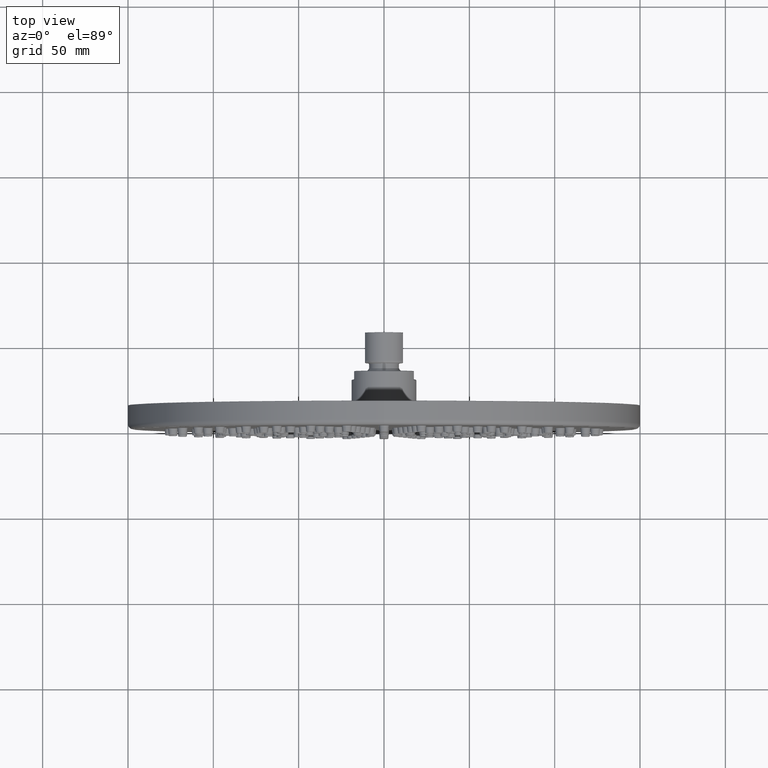
[diagram: clean part render]
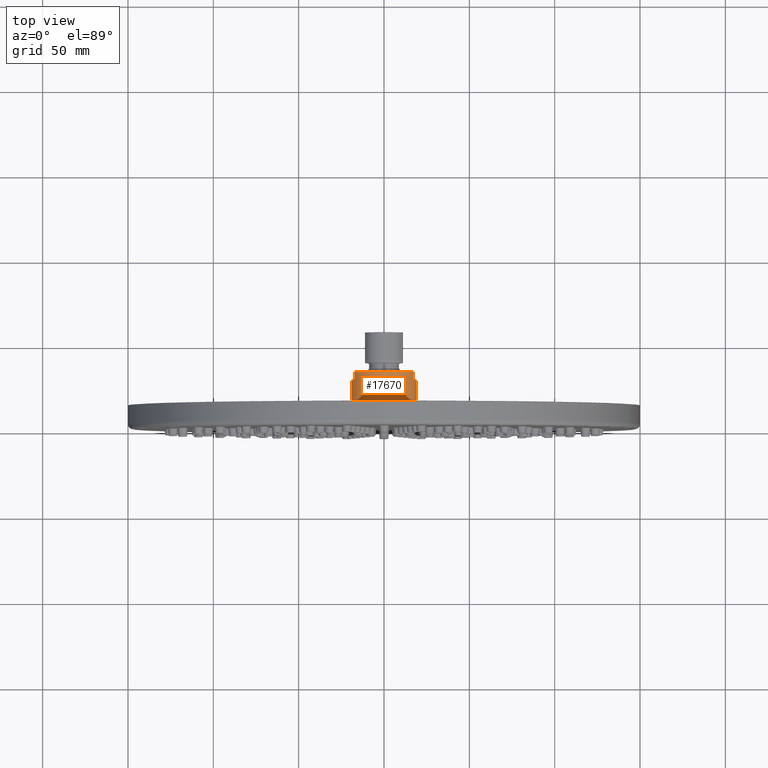
[diagram: same view with one face highlighted and labeled with its STEP entity id]
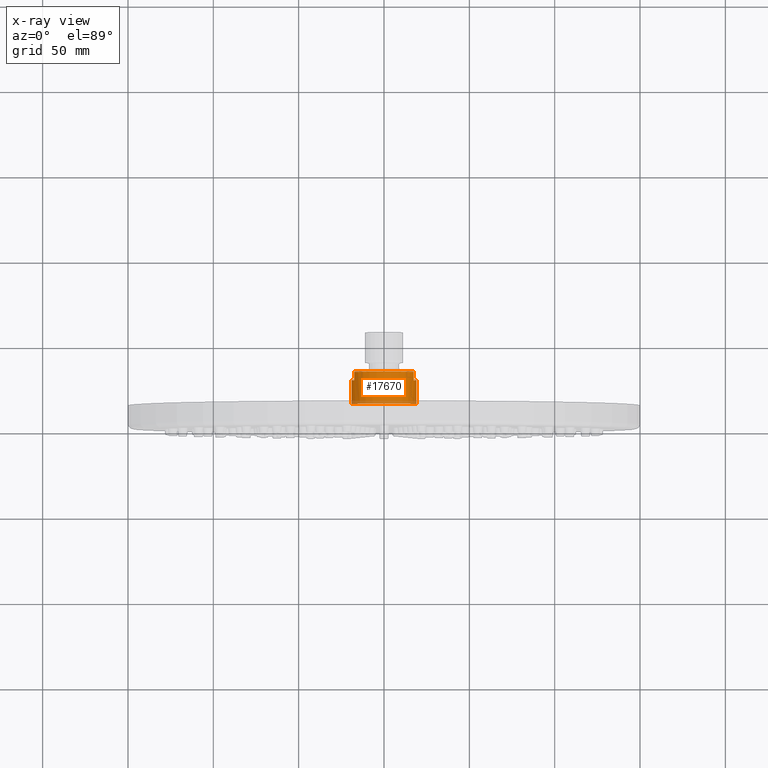
[diagram: x-ray of the same camera — body ghosted, the highlighted face saturated]
A machine part, top view. The second image highlights one B-rep face of the part: STEP entity #17670.
The next image is the same camera in x-ray: the body ghosted, the highlighted face saturated — about 10% of this face is hidden behind the body in this view.
In plain terms, the highlighted cylindrical surface (edge-blend (fillet) strip) has radius 19 mm, axis along (0, -1, 0).
Its self-contained STEP definition (entity closure, byte-faithful):
#15492=CARTESIAN_POINT('',(0.E0,-1.937987390906E1,0.E0));
#15493=DIRECTION('',(0.E0,1.E0,0.E0));
#15494=DIRECTION('',(-1.E0,0.E0,0.E0));
#15495=AXIS2_PLACEMENT_3D('',#15492,#15493,#15494);
#15512=DIRECTION('',(0.E0,-1.E0,0.E0));
#15513=VECTOR('',#15512,1.387987390906E1);
#15514=CARTESIAN_POINT('',(1.9E1,-5.5E0,0.E0));
#15515=LINE('',#15514,#15513);
#15516=DIRECTION('',(-1.347503469154E-6,9.999999999942E-1,-3.139352015306E-6));
#15517=VECTOR('',#15516,5.000000000029E0);
#15518=CARTESIAN_POINT('',(-1.745945945947E1,-5.5E0,7.494482996387E0));
#15519=LINE('',#15518,#15517);
#15520=DIRECTION('',(-7.903419643169E-7,-9.999999999980E-1,1.841266120547E-6));
#15521=VECTOR('',#15520,5.000000000010E0);
#15522=CARTESIAN_POINT('',(1.745946341117E1,-5.E-1,7.494473790071E0));
#15523=LINE('',#15522,#15521);
#15532=DIRECTION('',(0.E0,-1.E0,0.E0));
#15533=VECTOR('',#15532,1.387987390906E1);
#15534=CARTESIAN_POINT('',(-1.9E1,-5.5E0,0.E0));
#15535=LINE('',#15534,#15533);
#15546=CARTESIAN_POINT('',(0.E0,-5.5E0,0.E0));
#15547=DIRECTION('',(0.E0,-1.E0,0.E0));
#15548=DIRECTION('',(1.E0,0.E0,0.E0));
#15549=AXIS2_PLACEMENT_3D('',#15546,#15547,#15548);
#15665=CARTESIAN_POINT('',(0.E0,-5.E-1,0.E0));
#15666=DIRECTION('',(0.E0,-1.E0,0.E0));
#15667=DIRECTION('',(9.189189189198E-1,0.E0,3.944464734932E-1));
#15668=AXIS2_PLACEMENT_3D('',#15665,#15666,#15667);
#15728=CARTESIAN_POINT('',(0.E0,-5.5E0,0.E0));
#15729=DIRECTION('',(0.E0,-1.E0,0.E0));
#15730=DIRECTION('',(-9.189189189210E-1,0.E0,3.944464734904E-1));
#15731=AXIS2_PLACEMENT_3D('',#15728,#15729,#15730);
#15733=CARTESIAN_POINT('',(0.E0,-5.5E0,0.E0));
#15734=DIRECTION('',(0.E0,-1.E0,0.E0));
#15735=DIRECTION('',(-9.999664876764E-1,0.E0,8.186789615398E-3));
#15736=AXIS2_PLACEMENT_3D('',#15733,#15734,#15735);
#17525=CARTESIAN_POINT('',(-1.745947293502E1,-5.E-1,7.494451603115E0));
#17526=VERTEX_POINT('',#17525);
#17527=CARTESIAN_POINT('',(1.745946736306E1,-5.E-1,7.494464583827E0));
#17528=VERTEX_POINT('',#17527);
#17542=CARTESIAN_POINT('',(1.9E1,-5.5E0,0.E0));
#17543=VERTEX_POINT('',#17542);
#17544=CARTESIAN_POINT('',(1.745945945948E1,-5.5E0,7.494482996371E0));
#17545=VERTEX_POINT('',#17544);
#17552=CARTESIAN_POINT('',(1.9E1,-1.937987390906E1,0.E0));
#17553=VERTEX_POINT('',#17552);
#17556=CARTESIAN_POINT('',(-1.9E1,-5.5E0,0.E0));
#17557=VERTEX_POINT('',#17556);
#17558=CARTESIAN_POINT('',(-1.9E1,-1.937987390906E1,0.E0));
#17559=VERTEX_POINT('',#17558);
#17560=CARTESIAN_POINT('',(-1.745945945950E1,-5.5E0,7.494482996317E0));
#17561=CARTESIAN_POINT('',(-1.899936326585E1,-5.5E0,1.555490026926E-1));
#17562=VERTEX_POINT('',#17560);
#17563=VERTEX_POINT('',#17561);
#17646=CARTESIAN_POINT('',(0.E0,9.85E-1,0.E0));
#17647=DIRECTION('',(0.E0,-1.E0,0.E0));
#17648=DIRECTION('',(-1.E0,0.E0,0.E0));
#17649=AXIS2_PLACEMENT_3D('',#17646,#17647,#17648);
#17650=CYLINDRICAL_SURFACE('',#17649,1.9E1);
#17652=ORIENTED_EDGE('',*,*,#17651,.T.);
#17653=ORIENTED_EDGE('',*,*,#17635,.F.);
#17655=ORIENTED_EDGE('',*,*,#17654,.F.);
#17657=ORIENTED_EDGE('',*,*,#17656,.F.);
#17659=ORIENTED_EDGE('',*,*,#17658,.F.);
#17661=ORIENTED_EDGE('',*,*,#17660,.T.);
#17663=ORIENTED_EDGE('',*,*,#17662,.F.);
#17665=ORIENTED_EDGE('',*,*,#17664,.T.);
#17667=ORIENTED_EDGE('',*,*,#17666,.F.);
#17668=EDGE_LOOP('',(#17652,#17653,#17655,#17657,#17659,#17661,#17663,#17665,
#17667));
#17669=FACE_OUTER_BOUND('',#17668,.F.);
#17670=ADVANCED_FACE('',(#17669),#17650,.T.);
#15496=CIRCLE('',#15495,1.9E1);
#15550=CIRCLE('',#15549,1.9E1);
#15669=CIRCLE('',#15668,1.9E1);
#15732=CIRCLE('',#15731,1.9E1);
#15737=CIRCLE('',#15736,1.9E1);
#17635=EDGE_CURVE('',#17559,#17553,#15496,.T.);
#17651=EDGE_CURVE('',#17543,#17553,#15515,.T.);
#17654=EDGE_CURVE('',#17557,#17559,#15535,.T.);
#17656=EDGE_CURVE('',#17563,#17557,#15737,.T.);
#17658=EDGE_CURVE('',#17562,#17563,#15732,.T.);
#17660=EDGE_CURVE('',#17562,#17526,#15519,.T.);
#17662=EDGE_CURVE('',#17528,#17526,#15669,.T.);
#17664=EDGE_CURVE('',#17528,#17545,#15523,.T.);
#17666=EDGE_CURVE('',#17543,#17545,#15550,.T.);